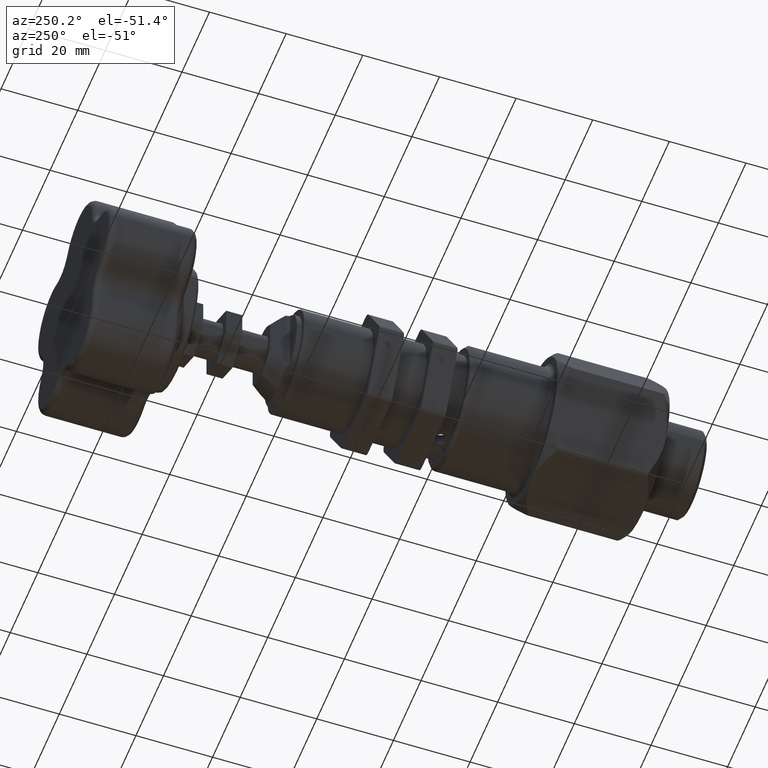
[diagram: clean part render]
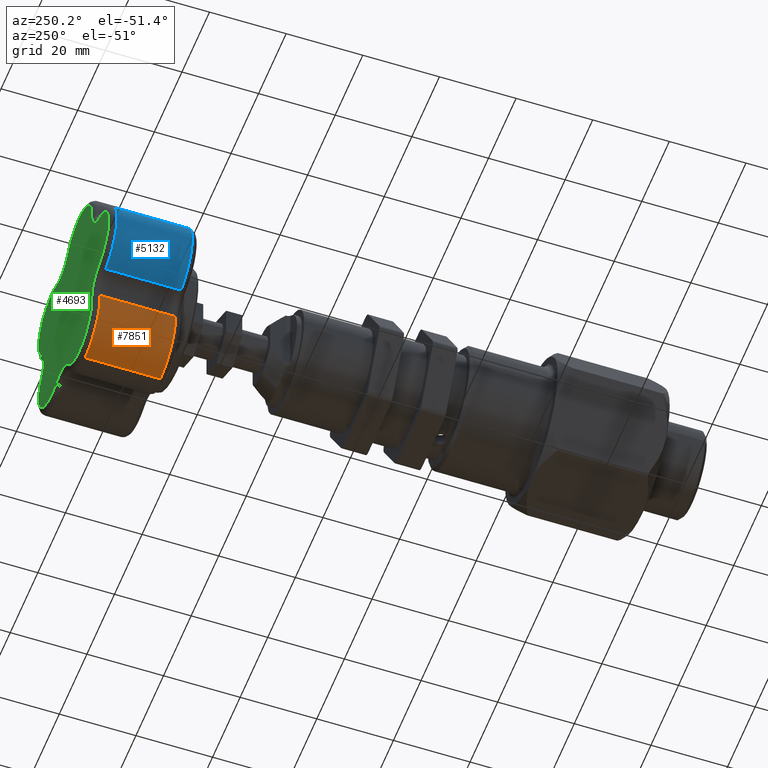
[diagram: same view with three faces highlighted in distinct colors, each labeled with its STEP entity id]
A machine part, auxiliary view with three faces highlighted in distinct colors.
Their STEP definitions:

[orange] entity #7851 — the highlighted cylindrical surface (partial cylindrical patch) has radius 10.9689 mm, axis along (0, 1, -0).
#685 = CIRCLE ( 'NONE', #1636, 0.4318471279999999700 ) ;
#690 = VERTEX_POINT ( 'NONE', #7205 ) ;
#823 = CARTESIAN_POINT ( 'NONE',  ( -0.6468682550848000600, 3.605754219593738000, -0.6390565481880909900 ) ) ;
#1147 = EDGE_CURVE ( 'NONE', #6827, #5549, #6551, .T. ) ;
#1241 = CARTESIAN_POINT ( 'NONE',  ( -0.2157411021196749000, 3.543254219593737500, -0.6639828382857770900 ) ) ;
#1270 = DIRECTION ( 'NONE',  ( 0.0000000000000000000, 1.000000000000000000, -0.0000000000000000000 ) ) ;
#1464 = CARTESIAN_POINT ( 'NONE',  ( -0.2157411021196749000, 3.543254219593737500, -1.095829966285776900 ) ) ;
#1636 = AXIS2_PLACEMENT_3D ( 'NONE', #1793, #6223, #2418 ) ;
#1793 = CARTESIAN_POINT ( 'NONE',  ( -0.2157411021196749000, 3.605754219593738000, -0.6639828382857770900 ) ) ;
#1903 = LINE ( 'NONE', #3166, #3577 ) ;
#2188 = VERTEX_POINT ( 'NONE', #823 ) ;
#2418 = DIRECTION ( 'NONE',  ( -8.698196069254307700E-016, 0.0000000000000000000, 1.000000000000000000 ) ) ;
#2473 = DIRECTION ( 'NONE',  ( 0.0000000000000000000, 1.000000000000000000, -0.0000000000000000000 ) ) ;
#3041 = FACE_OUTER_BOUND ( 'NONE', #5825, .T. ) ;
#3134 = DIRECTION ( 'NONE',  ( 0.0000000000000000000, 1.000000000000000000, -0.0000000000000000000 ) ) ;
#3166 = CARTESIAN_POINT ( 'NONE',  ( -0.6468682550848000600, 3.543254219593737500, -0.6390565481880909900 ) ) ;
#3456 = ORIENTED_EDGE ( 'NONE', *, *, #1147, .F. ) ;
#3577 = VECTOR ( 'NONE', #3134, 39.37007874015748100 ) ;
#3644 = CARTESIAN_POINT ( 'NONE',  ( -0.2157411021196749000, 4.380754139593737900, -0.6639828382857770900 ) ) ;
#3680 = CIRCLE ( 'NONE', #5903, 0.4318471279999999700 ) ;
#4281 = DIRECTION ( 'NONE',  ( 0.0000000000000000000, 0.0000000000000000000, 1.000000000000000000 ) ) ;
#4504 = ORIENTED_EDGE ( 'NONE', *, *, #5953, .T. ) ;
#4572 = CARTESIAN_POINT ( 'NONE',  ( -0.2157411021196749000, 4.380754139593737900, -1.095829966285776900 ) ) ;
#4858 = VECTOR ( 'NONE', #1270, 39.37007874015748100 ) ;
#5065 = DIRECTION ( 'NONE',  ( 0.0000000000000000000, 0.0000000000000000000, -1.000000000000000000 ) ) ;
#5549 = VERTEX_POINT ( 'NONE', #4572 ) ;
#5807 = EDGE_CURVE ( 'NONE', #690, #5549, #3680, .T. ) ;
#5825 = EDGE_LOOP ( 'NONE', ( #3456, #6505, #4504, #8051 ) ) ;
#5903 = AXIS2_PLACEMENT_3D ( 'NONE', #3644, #8079, #4281 ) ;
#5953 = EDGE_CURVE ( 'NONE', #2188, #690, #1903, .T. ) ;
#6223 = DIRECTION ( 'NONE',  ( -0.0000000000000000000, 1.000000000000000000, -0.0000000000000000000 ) ) ;
#6505 = ORIENTED_EDGE ( 'NONE', *, *, #7762, .T. ) ;
#6551 = LINE ( 'NONE', #1464, #4858 ) ;
#6573 = CARTESIAN_POINT ( 'NONE',  ( -0.2157411021196749000, 3.605754219593738000, -1.095829966285776900 ) ) ;
#6827 = VERTEX_POINT ( 'NONE', #6573 ) ;
#7134 = CYLINDRICAL_SURFACE ( 'NONE', #7998, 0.4318471279999999100 ) ;
#7205 = CARTESIAN_POINT ( 'NONE',  ( -0.6468682550848000600, 4.380754139593737900, -0.6390565481880909900 ) ) ;
#7762 = EDGE_CURVE ( 'NONE', #6827, #2188, #685, .T. ) ;
#7851 = ADVANCED_FACE ( 'NONE', ( #3041 ), #7134, .T. ) ;
#7998 = AXIS2_PLACEMENT_3D ( 'NONE', #1241, #2473, #5065 ) ;
#8051 = ORIENTED_EDGE ( 'NONE', *, *, #5807, .T. ) ;
#8079 = DIRECTION ( 'NONE',  ( 0.0000000000000000000, -1.000000000000000000, 0.0000000000000000000 ) ) ;

[blue] entity #5132 — the highlighted cylindrical surface (partial cylindrical patch) has radius 10.9689 mm, axis along (0, 1, -0).
#150 = AXIS2_PLACEMENT_3D ( 'NONE', #5817, #3334, #7018 ) ;
#238 = CARTESIAN_POINT ( 'NONE',  ( -0.8076721783782454500, 3.543254219593737500, 0.4177289354261641300 ) ) ;
#339 = CARTESIAN_POINT ( 'NONE',  ( -0.8076721783782416800, 3.543254219593737500, -0.4177289354261650700 ) ) ;
#526 = DIRECTION ( 'NONE',  ( 0.0000000000000000000, 0.0000000000000000000, 1.000000000000000000 ) ) ;
#532 = EDGE_CURVE ( 'NONE', #7041, #2259, #5769, .T. ) ;
#754 = ORIENTED_EDGE ( 'NONE', *, *, #3158, .T. ) ;
#850 = DIRECTION ( 'NONE',  ( 0.0000000000000000000, 1.000000000000000000, -0.0000000000000000000 ) ) ;
#1125 = EDGE_CURVE ( 'NONE', #6133, #7041, #1877, .T. ) ;
#1189 = DIRECTION ( 'NONE',  ( 0.0000000000000000000, 1.000000000000000000, -0.0000000000000000000 ) ) ;
#1689 = CIRCLE ( 'NONE', #2964, 0.4318471279999999700 ) ;
#1775 = DIRECTION ( 'NONE',  ( 0.0000000000000000000, 0.0000000000000000000, -1.000000000000000000 ) ) ;
#1877 = LINE ( 'NONE', #238, #6746 ) ;
#2059 = EDGE_CURVE ( 'NONE', #4908, #2259, #7194, .T. ) ;
#2259 = VERTEX_POINT ( 'NONE', #7855 ) ;
#2862 = AXIS2_PLACEMENT_3D ( 'NONE', #5584, #3014, #1775 ) ;
#2964 = AXIS2_PLACEMENT_3D ( 'NONE', #8131, #4323, #526 ) ;
#3014 = DIRECTION ( 'NONE',  ( 0.0000000000000000000, 1.000000000000000000, -0.0000000000000000000 ) ) ;
#3158 = EDGE_CURVE ( 'NONE', #4908, #6133, #1689, .T. ) ;
#3217 = ORIENTED_EDGE ( 'NONE', *, *, #1125, .T. ) ;
#3334 = DIRECTION ( 'NONE',  ( 0.0000000000000000000, -1.000000000000000000, 0.0000000000000000000 ) ) ;
#3404 = FACE_OUTER_BOUND ( 'NONE', #5841, .T. ) ;
#3512 = ORIENTED_EDGE ( 'NONE', *, *, #532, .T. ) ;
#4296 = CYLINDRICAL_SURFACE ( 'NONE', #2862, 0.4318471279999999700 ) ;
#4323 = DIRECTION ( 'NONE',  ( -0.0000000000000000000, 1.000000000000000000, -0.0000000000000000000 ) ) ;
#4908 = VERTEX_POINT ( 'NONE', #5252 ) ;
#5132 = ADVANCED_FACE ( 'NONE', ( #3404 ), #4296, .T. ) ;
#5252 = CARTESIAN_POINT ( 'NONE',  ( -0.8076721783782416800, 3.605754219593738000, -0.4177289354261650700 ) ) ;
#5501 = VECTOR ( 'NONE', #1189, 39.37007874015748100 ) ;
#5584 = CARTESIAN_POINT ( 'NONE',  ( -0.6981528719999999800, 3.543254219593737500, 2.965859817911587400E-017 ) ) ;
#5769 = CIRCLE ( 'NONE', #150, 0.4318471279999999700 ) ;
#5817 = CARTESIAN_POINT ( 'NONE',  ( -0.6981528719999999800, 4.380754139593737900, 2.965859817911587400E-017 ) ) ;
#5841 = EDGE_LOOP ( 'NONE', ( #3217, #3512, #7870, #754 ) ) ;
#6133 = VERTEX_POINT ( 'NONE', #7878 ) ;
#6746 = VECTOR ( 'NONE', #850, 39.37007874015748100 ) ;
#7018 = DIRECTION ( 'NONE',  ( 0.0000000000000000000, 0.0000000000000000000, 1.000000000000000000 ) ) ;
#7041 = VERTEX_POINT ( 'NONE', #7546 ) ;
#7194 = LINE ( 'NONE', #339, #5501 ) ;
#7546 = CARTESIAN_POINT ( 'NONE',  ( -0.8076721783782454500, 4.380754139593737900, 0.4177289354261641300 ) ) ;
#7855 = CARTESIAN_POINT ( 'NONE',  ( -0.8076721783782416800, 4.380754139593737900, -0.4177289354261650700 ) ) ;
#7870 = ORIENTED_EDGE ( 'NONE', *, *, #2059, .F. ) ;
#7878 = CARTESIAN_POINT ( 'NONE',  ( -0.8076721783782454500, 3.605754219593738000, 0.4177289354261641300 ) ) ;
#8131 = CARTESIAN_POINT ( 'NONE',  ( -0.6981528719999999800, 3.605754219593738000, 2.965859817911587400E-017 ) ) ;

[green] entity #4693 — the highlighted planar face has unit normal (0, -1, 0).
#115 = EDGE_CURVE ( 'NONE', #3330, #5610, #7455, .T. ) ;
#123 = DIRECTION ( 'NONE',  ( -1.849106021520399300E-015, 0.0000000000000000000, 1.000000000000000000 ) ) ;
#143 = CARTESIAN_POINT ( 'NONE',  ( 0.3294196466789053900, 4.443254139593737900, 1.013849423405766900 ) ) ;
#147 = VERTEX_POINT ( 'NONE', #2820 ) ;
#201 = CARTESIAN_POINT ( 'NONE',  ( -0.8624318315673682500, 4.443254139593737900, 0.6265934031392462700 ) ) ;
#267 = AXIS2_PLACEMENT_3D ( 'NONE', #1286, #5715, #1919 ) ;
#366 = ORIENTED_EDGE ( 'NONE', *, *, #1843, .T. ) ;
#462 = CIRCLE ( 'NONE', #4725, 0.3693471280000000800 ) ;
#514 = CARTESIAN_POINT ( 'NONE',  ( 0.4305979196425494000, 4.443254139593737900, 0.7544604528026270800 ) ) ;
#642 = CIRCLE ( 'NONE', #4043, 0.2784235640000001800 ) ;
#761 = AXIS2_PLACEMENT_3D ( 'NONE', #2886, #5155, #5290 ) ;
#792 = DIRECTION ( 'NONE',  ( 0.0000000000000000000, 0.0000000000000000000, 1.000000000000000000 ) ) ;
#797 = VERTEX_POINT ( 'NONE', #3515 ) ;
#969 = ORIENTED_EDGE ( 'NONE', *, *, #7848, .T. ) ;
#1178 = AXIS2_PLACEMENT_3D ( 'NONE', #2079, #4673, #2797 ) ;
#1181 = EDGE_CURVE ( 'NONE', #1761, #7038, #2557, .T. ) ;
#1210 = CARTESIAN_POINT ( 'NONE',  ( 0.4305979196425530100, 4.443254139593737900, -0.7544604528026277500 ) ) ;
#1235 = EDGE_CURVE ( 'NONE', #5610, #4056, #2359, .T. ) ;
#1286 = CARTESIAN_POINT ( 'NONE',  ( -0.6981528719999999800, 4.443254139593737900, 2.965859817911587400E-017 ) ) ;
#1398 = FACE_OUTER_BOUND ( 'NONE', #5910, .T. ) ;
#1554 = DIRECTION ( 'NONE',  ( -0.0000000000000000000, 1.000000000000000000, -0.0000000000000000000 ) ) ;
#1606 = AXIS2_PLACEMENT_3D ( 'NONE', #1967, #6391, #2589 ) ;
#1725 = DIRECTION ( 'NONE',  ( 0.0000000000000000000, 0.0000000000000000000, 1.000000000000000000 ) ) ;
#1761 = VERTEX_POINT ( 'NONE', #2502 ) ;
#1768 = DIRECTION ( 'NONE',  ( -0.0000000000000000000, 1.000000000000000000, -0.0000000000000000000 ) ) ;
#1771 = ORIENTED_EDGE ( 'NONE', *, *, #1181, .T. ) ;
#1809 = CIRCLE ( 'NONE', #7912, 0.2784235640000001800 ) ;
#1843 = EDGE_CURVE ( 'NONE', #4056, #3336, #462, .T. ) ;
#1859 = CARTESIAN_POINT ( 'NONE',  ( -0.2157411021196749000, 4.443254139593737900, -0.6639828382857770900 ) ) ;
#1875 = DIRECTION ( 'NONE',  ( 0.0000000000000000000, -1.000000000000000000, 0.0000000000000000000 ) ) ;
#1889 = CARTESIAN_POINT ( 'NONE',  ( -0.2157411021196804800, 4.443254139593737900, 1.033329966285775300 ) ) ;
#1907 = DIRECTION ( 'NONE',  ( 0.0000000000000000000, -1.000000000000000000, 0.0000000000000000000 ) ) ;
#1909 = ORIENTED_EDGE ( 'NONE', *, *, #4875, .T. ) ;
#1919 = DIRECTION ( 'NONE',  ( 0.0000000000000000000, 0.0000000000000000000, 1.000000000000000000 ) ) ;
#1967 = CARTESIAN_POINT ( 'NONE',  ( 0.4471185923992910300, 4.443254139593737900, 0.7121066927065012900 ) ) ;
#1990 = ORIENTED_EDGE ( 'NONE', *, *, #1235, .T. ) ;
#2079 = CARTESIAN_POINT ( 'NONE',  ( -0.2157411021196804800, 4.443254139593737900, 0.6639828382857753100 ) ) ;
#2224 = CARTESIAN_POINT ( 'NONE',  ( 0.3294196466789109900, 4.443254139593737900, -1.013849423405768400 ) ) ;
#2288 = EDGE_CURVE ( 'NONE', #6666, #4231, #2793, .T. ) ;
#2314 = ORIENTED_EDGE ( 'NONE', *, *, #2565, .T. ) ;
#2359 = CIRCLE ( 'NONE', #1178, 0.3693471280000000800 ) ;
#2463 = CIRCLE ( 'NONE', #4236, 0.3693471279999999700 ) ;
#2482 = DIRECTION ( 'NONE',  ( -9.245530107601998700E-016, 0.0000000000000000000, 1.000000000000000000 ) ) ;
#2502 = CARTESIAN_POINT ( 'NONE',  ( 0.8505966048369756300, 4.443254139593737900, -0.1763818558793562900 ) ) ;
#2533 = AXIS2_PLACEMENT_3D ( 'NONE', #2224, #6662, #2850 ) ;
#2557 = CIRCLE ( 'NONE', #761, 0.3693471279999999700 ) ;
#2565 = EDGE_CURVE ( 'NONE', #5716, #147, #1809, .T. ) ;
#2589 = DIRECTION ( 'NONE',  ( 0.0000000000000000000, 0.0000000000000000000, 1.000000000000000000 ) ) ;
#2601 = CIRCLE ( 'NONE', #3681, 0.2784235640000002300 ) ;
#2793 = CIRCLE ( 'NONE', #2533, 0.2784235640000001800 ) ;
#2797 = DIRECTION ( 'NONE',  ( 0.0000000000000000000, 0.0000000000000000000, 1.000000000000000000 ) ) ;
#2820 = CARTESIAN_POINT ( 'NONE',  ( -0.7918217623286063500, 4.443254139593737900, -0.3572722210674318400 ) ) ;
#2850 = DIRECTION ( 'NONE',  ( 0.0000000000000000000, 0.0000000000000000000, 1.000000000000000000 ) ) ;
#2884 = ORIENTED_EDGE ( 'NONE', *, *, #5611, .T. ) ;
#2886 = CARTESIAN_POINT ( 'NONE',  ( 0.5648175381196769400, 4.443254139593737900, -0.4103639620072351800 ) ) ;
#3118 = VERTEX_POINT ( 'NONE', #4299 ) ;
#3246 = CIRCLE ( 'NONE', #5029, 0.2784235640000001800 ) ;
#3262 = EDGE_CURVE ( 'NONE', #147, #3330, #7173, .T. ) ;
#3294 = DIRECTION ( 'NONE',  ( 0.0000000000000000000, 0.0000000000000000000, 1.000000000000000000 ) ) ;
#3330 = VERTEX_POINT ( 'NONE', #4495 ) ;
#3336 = VERTEX_POINT ( 'NONE', #5141 ) ;
#3342 = CIRCLE ( 'NONE', #5756, 0.3693471280000000800 ) ;
#3425 = CARTESIAN_POINT ( 'NONE',  ( -0.5844724550128868000, 4.443254139593737900, 0.6426640588790146800 ) ) ;
#3484 = CARTESIAN_POINT ( 'NONE',  ( -0.2157411021196804800, 4.443254139593737900, 0.6639828382857753100 ) ) ;
#3510 = DIRECTION ( 'NONE',  ( 0.0000000000000000000, -1.000000000000000000, 0.0000000000000000000 ) ) ;
#3515 = CARTESIAN_POINT ( 'NONE',  ( 0.5648175381196767200, 4.443254139593737900, 0.7797110900072356000 ) ) ;
#3633 = ORIENTED_EDGE ( 'NONE', *, *, #3834, .T. ) ;
#3681 = AXIS2_PLACEMENT_3D ( 'NONE', #5702, #1907, #6338 ) ;
#3834 = EDGE_CURVE ( 'NONE', #4231, #5716, #2463, .T. ) ;
#3924 = DIRECTION ( 'NONE',  ( -0.0000000000000000000, 1.000000000000000000, -0.0000000000000000000 ) ) ;
#3996 = CARTESIAN_POINT ( 'NONE',  ( 0.09509969286196513800, 4.443254139593737900, -0.8634704347348556300 ) ) ;
#4026 = DIRECTION ( 'NONE',  ( 0.0000000000000000000, -1.000000000000000000, 0.0000000000000000000 ) ) ;
#4043 = AXIS2_PLACEMENT_3D ( 'NONE', #143, #4584, #792 ) ;
#4056 = VERTEX_POINT ( 'NONE', #1889 ) ;
#4126 = CARTESIAN_POINT ( 'NONE',  ( -0.5844724550128812500, 4.443254139593737900, -0.6426640588790163400 ) ) ;
#4231 = VERTEX_POINT ( 'NONE', #3996 ) ;
#4233 = ORIENTED_EDGE ( 'NONE', *, *, #7115, .T. ) ;
#4236 = AXIS2_PLACEMENT_3D ( 'NONE', #1859, #6286, #2482 ) ;
#4299 = CARTESIAN_POINT ( 'NONE',  ( 0.8505966048369757400, 4.443254139593737900, 0.1763818558793569000 ) ) ;
#4309 = ORIENTED_EDGE ( 'NONE', *, *, #3262, .T. ) ;
#4495 = CARTESIAN_POINT ( 'NONE',  ( -0.7918217623286095700, 4.443254139593737900, 0.3572722210674309500 ) ) ;
#4584 = DIRECTION ( 'NONE',  ( 0.0000000000000000000, -1.000000000000000000, 0.0000000000000000000 ) ) ;
#4608 = AXIS2_PLACEMENT_3D ( 'NONE', #201, #4026, #1725 ) ;
#4673 = DIRECTION ( 'NONE',  ( -0.0000000000000000000, 1.000000000000000000, -0.0000000000000000000 ) ) ;
#4693 = ADVANCED_FACE ( 'NONE', ( #1398 ), #6362, .F. ) ;
#4704 = ORIENTED_EDGE ( 'NONE', *, *, #115, .T. ) ;
#4725 = AXIS2_PLACEMENT_3D ( 'NONE', #3484, #1768, #3294 ) ;
#4875 = EDGE_CURVE ( 'NONE', #3336, #7810, #642, .T. ) ;
#5029 = AXIS2_PLACEMENT_3D ( 'NONE', #5669, #1875, #6301 ) ;
#5141 = CARTESIAN_POINT ( 'NONE',  ( 0.09509969286195972500, 4.443254139593737900, 0.8634704347348537400 ) ) ;
#5155 = DIRECTION ( 'NONE',  ( -0.0000000000000000000, 1.000000000000000000, -0.0000000000000000000 ) ) ;
#5290 = DIRECTION ( 'NONE',  ( 0.0000000000000000000, 0.0000000000000000000, 1.000000000000000000 ) ) ;
#5349 = CARTESIAN_POINT ( 'NONE',  ( 0.5648175381196767200, 4.443254139593737900, 0.4103639620072356800 ) ) ;
#5610 = VERTEX_POINT ( 'NONE', #3425 ) ;
#5611 = EDGE_CURVE ( 'NONE', #797, #3118, #5881, .T. ) ;
#5669 = CARTESIAN_POINT ( 'NONE',  ( 0.3294196466789109900, 4.443254139593737900, -1.013849423405768400 ) ) ;
#5702 = CARTESIAN_POINT ( 'NONE',  ( 1.066024369776911200, 4.443254139593737900, 4.137525368253492500E-016 ) ) ;
#5715 = DIRECTION ( 'NONE',  ( -0.0000000000000000000, 1.000000000000000000, -0.0000000000000000000 ) ) ;
#5716 = VERTEX_POINT ( 'NONE', #4126 ) ;
#5756 = AXIS2_PLACEMENT_3D ( 'NONE', #7718, #3924, #123 ) ;
#5881 = CIRCLE ( 'NONE', #7759, 0.3693471280000000800 ) ;
#5910 = EDGE_LOOP ( 'NONE', ( #4704, #1990, #366, #1909, #6703, #2884, #4233, #1771, #969, #8190, #3633, #2314, #4309 ) ) ;
#5980 = DIRECTION ( 'NONE',  ( 0.0000000000000000000, 0.0000000000000000000, 1.000000000000000000 ) ) ;
#5984 = EDGE_CURVE ( 'NONE', #7810, #797, #3342, .T. ) ;
#6286 = DIRECTION ( 'NONE',  ( -0.0000000000000000000, 1.000000000000000000, -0.0000000000000000000 ) ) ;
#6301 = DIRECTION ( 'NONE',  ( 0.0000000000000000000, 0.0000000000000000000, 1.000000000000000000 ) ) ;
#6338 = DIRECTION ( 'NONE',  ( 0.0000000000000000000, 0.0000000000000000000, 1.000000000000000000 ) ) ;
#6362 = PLANE ( 'NONE',  #1606 ) ;
#6391 = DIRECTION ( 'NONE',  ( 0.0000000000000000000, -1.000000000000000000, 0.0000000000000000000 ) ) ;
#6662 = DIRECTION ( 'NONE',  ( 0.0000000000000000000, -1.000000000000000000, 0.0000000000000000000 ) ) ;
#6666 = VERTEX_POINT ( 'NONE', #7637 ) ;
#6703 = ORIENTED_EDGE ( 'NONE', *, *, #5984, .T. ) ;
#7038 = VERTEX_POINT ( 'NONE', #1210 ) ;
#7115 = EDGE_CURVE ( 'NONE', #3118, #1761, #2601, .T. ) ;
#7173 = CIRCLE ( 'NONE', #267, 0.3693471279999999700 ) ;
#7320 = CARTESIAN_POINT ( 'NONE',  ( -0.8624318315673628100, 4.443254139593737900, -0.6265934031392477200 ) ) ;
#7455 = CIRCLE ( 'NONE', #4608, 0.2784235640000000100 ) ;
#7637 = CARTESIAN_POINT ( 'NONE',  ( 0.3294196466789109900, 4.443254139593737900, -0.7354258594057683200 ) ) ;
#7718 = CARTESIAN_POINT ( 'NONE',  ( 0.5648175381196767200, 4.443254139593737900, 0.4103639620072356800 ) ) ;
#7759 = AXIS2_PLACEMENT_3D ( 'NONE', #5349, #1554, #5980 ) ;
#7810 = VERTEX_POINT ( 'NONE', #514 ) ;
#7848 = EDGE_CURVE ( 'NONE', #7038, #6666, #3246, .T. ) ;
#7912 = AXIS2_PLACEMENT_3D ( 'NONE', #7320, #3510, #7953 ) ;
#7953 = DIRECTION ( 'NONE',  ( 0.0000000000000000000, 0.0000000000000000000, 1.000000000000000000 ) ) ;
#8190 = ORIENTED_EDGE ( 'NONE', *, *, #2288, .T. ) ;